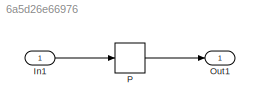
MODEL slx_6a5d26e66976
KIND model
CONFIG AbsTol = auto
CONFIG EnableMultiTasking = off
CONFIG FixedStep = auto
CONFIG MaxStep = auto
CONFIG MinStep = auto
CONFIG RelTol = 1e-3
CONFIG SampleTimeConstraint = Unconstrained
CONFIG Solver = FixedStepDiscrete
CONFIG SolverName = FixedStepDiscrete
CONFIG StartTime = 0.0
CONFIG StopTime = 10.0
BLOCK [Inport] In1
  IconDisplay = Port number
BLOCK [Outport] Out1
  IconDisplay = Port number
BLOCK [Selector] P
  IndexMode = Zero-based
  IndexOptions = Select all
  Indices = []
  InputPortWidth = 3
  Ports = [1, 1]
LINE In1:1 -> P:1
LINE P:1 -> Out1:1
